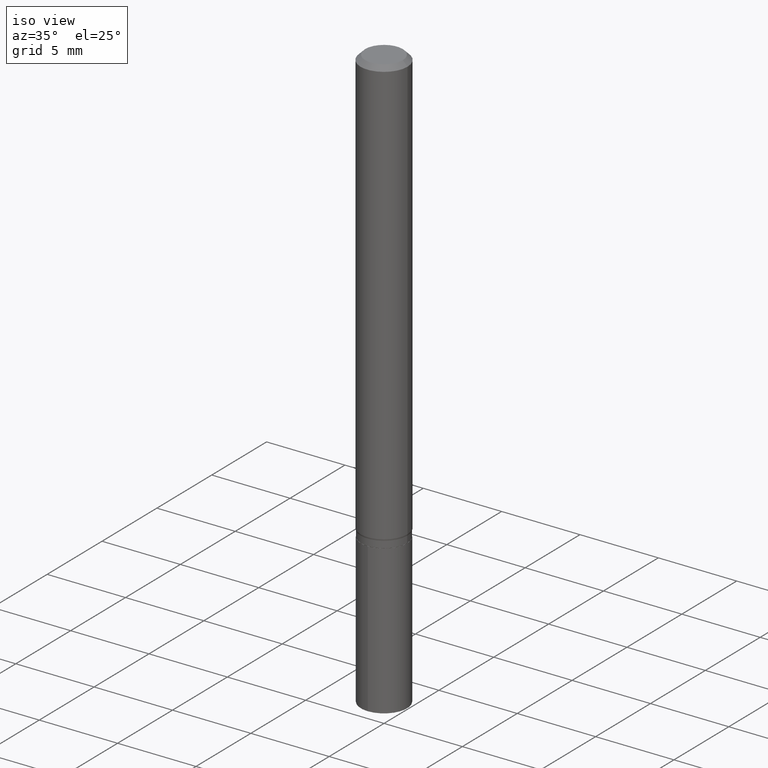
[diagram: clean part render]
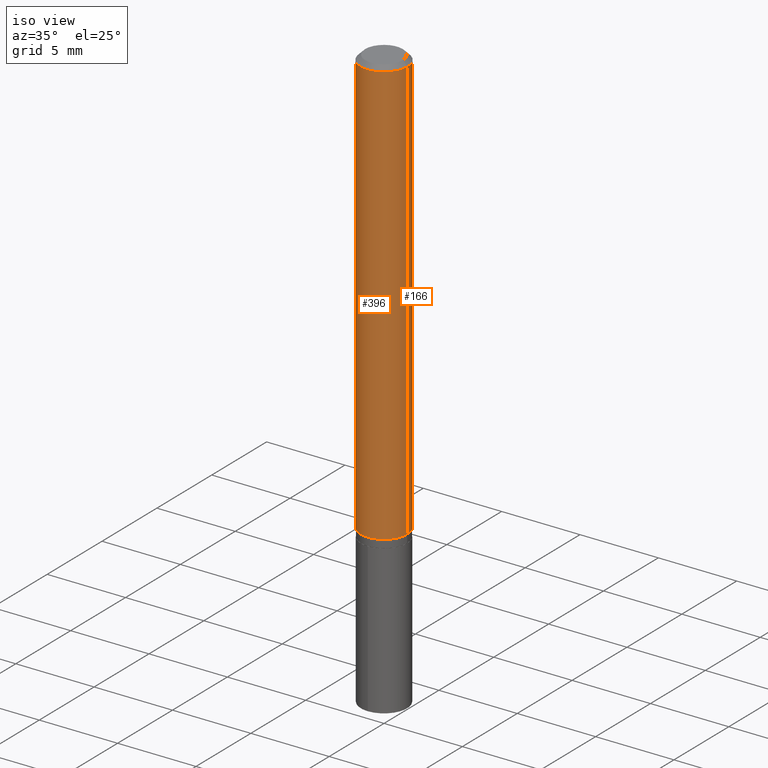
[diagram: same view with one multi-face feature highlighted, each face labeled with its STEP entity id]
A machine part, iso view. The highlighted faces form ONE feature: a constant-radius fillet chain: 2 tangent blend faces with common blend radius 1.4999 mm. The faces share edges in the B-rep.
Their STEP definitions:
[1] entity #396 (Cylinder):
#1 = DIRECTION ( 'NONE',  ( -2.445468806185136597E-29, 3.491481338843145583E-15, 1.000000000000000000 ) ) ;
#7 = CARTESIAN_POINT ( 'NONE',  ( -0.05905000000000013016, -3.328068678851369121E-15, -1.073367949192430615 ) ) ;
#26 = ORIENTED_EDGE ( 'NONE', *, *, #146, .T. ) ;
#31 = AXIS2_PLACEMENT_3D ( 'NONE', #195, #192, #346 ) ;
#42 = DIRECTION ( 'NONE',  ( 1.000000000000000000, -6.982962677686266711E-15, 4.876176775795936353E-29 ) ) ;
#45 = CARTESIAN_POINT ( 'NONE',  ( 0.05905000000000006771, -4.123439461173745257E-16, 2.879382386107503723E-30 ) ) ;
#52 = ORIENTED_EDGE ( 'NONE', *, *, #137, .T. ) ;
#71 = FACE_OUTER_BOUND ( 'NONE', #483, .T. ) ;
#74 = AXIS2_PLACEMENT_3D ( 'NONE', #198, #245, #402 ) ;
#92 = CARTESIAN_POINT ( 'NONE',  ( 0.05904999999999999832, -4.535783407291118600E-16, -0.01181000000000006350 ) ) ;
#137 = EDGE_CURVE ( 'NONE', #371, #305, #457, .T. ) ;
#146 = EDGE_CURVE ( 'NONE', #151, #371, #243, .T. ) ;
#151 = VERTEX_POINT ( 'NONE', #7 ) ;
#178 = AXIS2_PLACEMENT_3D ( 'NONE', #267, #1, #42 ) ;
#192 = DIRECTION ( 'NONE',  ( -2.445468806185136597E-29, 3.491481338843145583E-15, 1.000000000000000000 ) ) ;
#195 = CARTESIAN_POINT ( 'NONE',  ( 2.624887837309001649E-29, -3.747644164317709009E-15, -1.073367949192430615 ) ) ;
#198 = CARTESIAN_POINT ( 'NONE',  ( 2.888098660104662014E-31, -4.123439461173777182E-17, -0.01181000000000006350 ) ) ;
#211 = CARTESIAN_POINT ( 'NONE',  ( -0.05904999999999999832, -1.474863793998382890E-15, -0.01181000000000006350 ) ) ;
#213 = EDGE_CURVE ( 'NONE', #419, #305, #287, .T. ) ;
#224 = CARTESIAN_POINT ( 'NONE',  ( -0.05905000000000006771, 4.195754854663396409E-16, -2.904631170795525045E-30 ) ) ;
#243 = CIRCLE ( 'NONE', #31, 0.05905000000000013016 ) ;
#245 = DIRECTION ( 'NONE',  ( -2.445468806185136597E-29, 3.491481338843145583E-15, 1.000000000000000000 ) ) ;
#264 = ORIENTED_EDGE ( 'NONE', *, *, #463, .F. ) ;
#267 = CARTESIAN_POINT ( 'NONE',  ( 0.000000000000000000, 0.000000000000000000, 0.000000000000000000 ) ) ;
#287 = CIRCLE ( 'NONE', #74, 0.05904999999999999832 ) ;
#303 = CARTESIAN_POINT ( 'NONE',  ( 0.05905000000000013016, -4.159988110435083929E-15, -1.073367949192430615 ) ) ;
#305 = VERTEX_POINT ( 'NONE', #92 ) ;
#310 = DIRECTION ( 'NONE',  ( -2.445468806185136877E-29, 3.491481338843145188E-15, 1.000000000000000000 ) ) ;
#346 = DIRECTION ( 'NONE',  ( 1.000000000000000000, -6.982962677686265133E-15, 0.000000000000000000 ) ) ;
#357 = VECTOR ( 'NONE', #310, 39.37007874015748143 ) ;
#371 = VERTEX_POINT ( 'NONE', #303 ) ;
#374 = VECTOR ( 'NONE', #412, 39.37007874015748143 ) ;
#396 = ADVANCED_FACE ( 'NONE', ( #71 ), #437, .T. ) ;
#402 = DIRECTION ( 'NONE',  ( 1.000000000000000000, -6.982962677686266711E-15, 0.000000000000000000 ) ) ;
#412 = DIRECTION ( 'NONE',  ( -2.445468806185136877E-29, 3.491481338843145188E-15, 1.000000000000000000 ) ) ;
#419 = VERTEX_POINT ( 'NONE', #211 ) ;
#437 = CYLINDRICAL_SURFACE ( 'NONE', #178, 0.05905000000000006771 ) ;
#448 = LINE ( 'NONE', #224, #374 ) ;
#450 = ORIENTED_EDGE ( 'NONE', *, *, #213, .F. ) ;
#457 = LINE ( 'NONE', #45, #357 ) ;
#463 = EDGE_CURVE ( 'NONE', #151, #419, #448, .T. ) ;
#483 = EDGE_LOOP ( 'NONE', ( #264, #26, #52, #450 ) ) ;
[2] entity #166 (Cylinder):
#7 = CARTESIAN_POINT ( 'NONE',  ( -0.05905000000000013016, -3.328068678851369121E-15, -1.073367949192430615 ) ) ;
#28 = ORIENTED_EDGE ( 'NONE', *, *, #137, .F. ) ;
#39 = ORIENTED_EDGE ( 'NONE', *, *, #308, .F. ) ;
#45 = CARTESIAN_POINT ( 'NONE',  ( 0.05905000000000006771, -4.123439461173745257E-16, 2.879382386107503723E-30 ) ) ;
#76 = AXIS2_PLACEMENT_3D ( 'NONE', #432, #247, #292 ) ;
#77 = ORIENTED_EDGE ( 'NONE', *, *, #463, .T. ) ;
#88 = CARTESIAN_POINT ( 'NONE',  ( 0.000000000000000000, 0.000000000000000000, 0.000000000000000000 ) ) ;
#92 = CARTESIAN_POINT ( 'NONE',  ( 0.05904999999999999832, -4.535783407291118600E-16, -0.01181000000000006350 ) ) ;
#120 = FACE_OUTER_BOUND ( 'NONE', #316, .T. ) ;
#137 = EDGE_CURVE ( 'NONE', #371, #305, #457, .T. ) ;
#140 = DIRECTION ( 'NONE',  ( 1.000000000000000000, -6.982962677686265133E-15, 0.000000000000000000 ) ) ;
#151 = VERTEX_POINT ( 'NONE', #7 ) ;
#166 = ADVANCED_FACE ( 'NONE', ( #120 ), #313, .T. ) ;
#211 = CARTESIAN_POINT ( 'NONE',  ( -0.05904999999999999832, -1.474863793998382890E-15, -0.01181000000000006350 ) ) ;
#214 = DIRECTION ( 'NONE',  ( -2.445468806185136597E-29, 3.491481338843145583E-15, 1.000000000000000000 ) ) ;
#224 = CARTESIAN_POINT ( 'NONE',  ( -0.05905000000000006771, 4.195754854663396409E-16, -2.904631170795525045E-30 ) ) ;
#247 = DIRECTION ( 'NONE',  ( -2.445468806185136597E-29, 3.491481338843145583E-15, 1.000000000000000000 ) ) ;
#282 = CIRCLE ( 'NONE', #76, 0.05904999999999999832 ) ;
#292 = DIRECTION ( 'NONE',  ( 1.000000000000000000, -6.982962677686266711E-15, 0.000000000000000000 ) ) ;
#303 = CARTESIAN_POINT ( 'NONE',  ( 0.05905000000000013016, -4.159988110435083929E-15, -1.073367949192430615 ) ) ;
#305 = VERTEX_POINT ( 'NONE', #92 ) ;
#308 = EDGE_CURVE ( 'NONE', #305, #419, #282, .T. ) ;
#310 = DIRECTION ( 'NONE',  ( -2.445468806185136877E-29, 3.491481338843145188E-15, 1.000000000000000000 ) ) ;
#311 = CIRCLE ( 'NONE', #321, 0.05905000000000013016 ) ;
#313 = CYLINDRICAL_SURFACE ( 'NONE', #475, 0.05905000000000006771 ) ;
#316 = EDGE_LOOP ( 'NONE', ( #488, #77, #39, #28 ) ) ;
#321 = AXIS2_PLACEMENT_3D ( 'NONE', #479, #214, #140 ) ;
#355 = DIRECTION ( 'NONE',  ( 1.000000000000000000, -6.982962677686266711E-15, 4.876176775795936353E-29 ) ) ;
#357 = VECTOR ( 'NONE', #310, 39.37007874015748143 ) ;
#371 = VERTEX_POINT ( 'NONE', #303 ) ;
#374 = VECTOR ( 'NONE', #412, 39.37007874015748143 ) ;
#381 = EDGE_CURVE ( 'NONE', #371, #151, #311, .T. ) ;
#389 = DIRECTION ( 'NONE',  ( -2.445468806185136597E-29, 3.491481338843145583E-15, 1.000000000000000000 ) ) ;
#412 = DIRECTION ( 'NONE',  ( -2.445468806185136877E-29, 3.491481338843145188E-15, 1.000000000000000000 ) ) ;
#419 = VERTEX_POINT ( 'NONE', #211 ) ;
#432 = CARTESIAN_POINT ( 'NONE',  ( 2.888098660104662014E-31, -4.123439461173777182E-17, -0.01181000000000006350 ) ) ;
#448 = LINE ( 'NONE', #224, #374 ) ;
#457 = LINE ( 'NONE', #45, #357 ) ;
#463 = EDGE_CURVE ( 'NONE', #151, #419, #448, .T. ) ;
#475 = AXIS2_PLACEMENT_3D ( 'NONE', #88, #389, #355 ) ;
#479 = CARTESIAN_POINT ( 'NONE',  ( 2.624887837309001649E-29, -3.747644164317709009E-15, -1.073367949192430615 ) ) ;
#488 = ORIENTED_EDGE ( 'NONE', *, *, #381, .T. ) ;